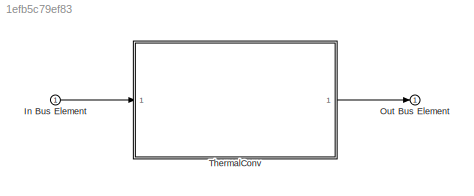
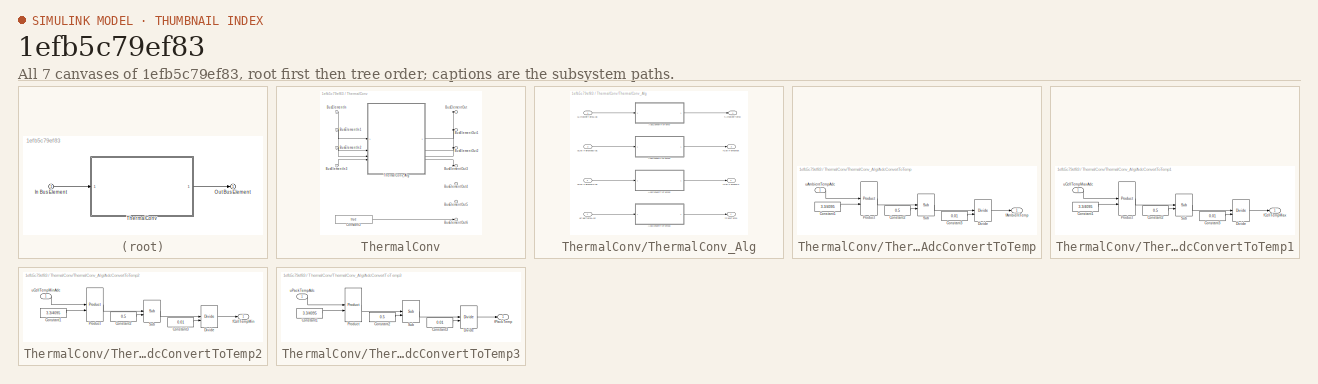
[diagram: thumbnail index - all 7 canvases of the model, root first then tree order]
MODEL slx_1efb5c79ef83
KIND model
CONFIG AbsTol = auto
CONFIG EnableMultiTasking = off
CONFIG FixedStep = 10e-3
CONFIG MaxStep = auto
CONFIG MinStep = auto
CONFIG RelTol = 1e-3
CONFIG SampleTimeConstraint = Unconstrained
CONFIG SolverName = FixedStepDiscrete
CONFIG StartTime = 0.0
CONFIG StopTime = 10.0
BLOCK [Inport] In Bus Element
BLOCK [Outport] Out Bus Element
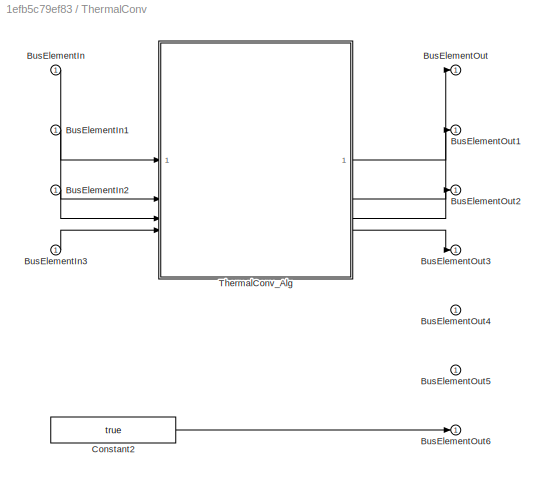
BLOCK [SubSystem] ThermalConv
BLOCK [Inport] ThermalConv/BusElementIn
BLOCK [Inport] ThermalConv/BusElementIn1
BLOCK [Inport] ThermalConv/BusElementIn2
BLOCK [Inport] ThermalConv/BusElementIn3
BLOCK [Outport] ThermalConv/BusElementOut
BLOCK [Outport] ThermalConv/BusElementOut1
BLOCK [Outport] ThermalConv/BusElementOut2
BLOCK [Outport] ThermalConv/BusElementOut3
BLOCK [Outport] ThermalConv/BusElementOut4
BLOCK [Outport] ThermalConv/BusElementOut5
BLOCK [Outport] ThermalConv/BusElementOut6
BLOCK [Constant] ThermalConv/Constant2
  OutDataTypeStr = boolean
  Value = true
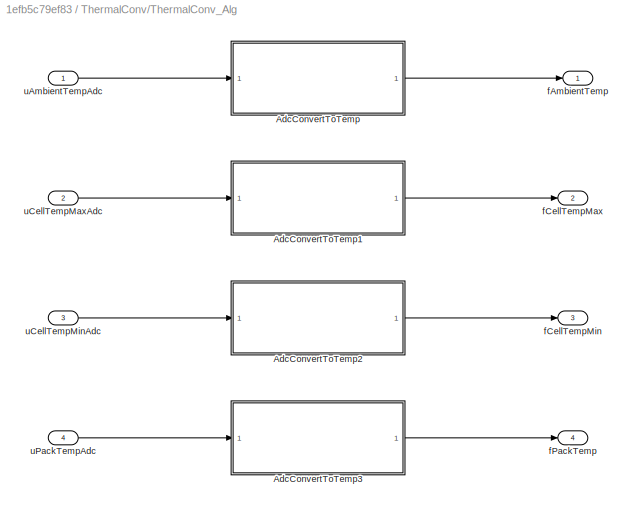
BLOCK [SubSystem] ThermalConv/ThermalConv_Alg
BLOCK [SubSystem] ThermalConv/ThermalConv_Alg/AdcConvertToTemp
  RTWFcnNameOpts = Use subsystem name
  TreatAsAtomicUnit = on
BLOCK [Constant] ThermalConv/ThermalConv_Alg/AdcConvertToTemp/Constant1
  OutDataTypeStr = single
  Value = 3.3/4095
BLOCK [Constant] ThermalConv/ThermalConv_Alg/AdcConvertToTemp/Constant2
  OutDataTypeStr = single
  Value = 0.5
BLOCK [Constant] ThermalConv/ThermalConv_Alg/AdcConvertToTemp/Constant3
  OutDataTypeStr = single
  Value = 0.01
BLOCK [Reference] ThermalConv/ThermalConv_Alg/AdcConvertToTemp/Divide  REF=AswLib/Divide
  SourceBlock = AswLib/Divide
BLOCK [Reference] ThermalConv/ThermalConv_Alg/AdcConvertToTemp/Product  REF=AswLib/Product
  SourceBlock = AswLib/Product
BLOCK [Reference] ThermalConv/ThermalConv_Alg/AdcConvertToTemp/Sub  REF=AswLib/Sub
  SourceBlock = AswLib/Sub
BLOCK [Outport] ThermalConv/ThermalConv_Alg/AdcConvertToTemp/fAmbientTemp
BLOCK [Inport] ThermalConv/ThermalConv_Alg/AdcConvertToTemp/uAmbientTempAdc
BLOCK [SubSystem] ThermalConv/ThermalConv_Alg/AdcConvertToTemp1
  RTWFcnNameOpts = Use subsystem name
  TreatAsAtomicUnit = on
BLOCK [Constant] ThermalConv/ThermalConv_Alg/AdcConvertToTemp1/Constant1
  OutDataTypeStr = single
  Value = 3.3/4095
BLOCK [Constant] ThermalConv/ThermalConv_Alg/AdcConvertToTemp1/Constant2
  OutDataTypeStr = single
  Value = 0.5
BLOCK [Constant] ThermalConv/ThermalConv_Alg/AdcConvertToTemp1/Constant3
  OutDataTypeStr = single
  Value = 0.01
BLOCK [Reference] ThermalConv/ThermalConv_Alg/AdcConvertToTemp1/Divide  REF=AswLib/Divide
  SourceBlock = AswLib/Divide
BLOCK [Reference] ThermalConv/ThermalConv_Alg/AdcConvertToTemp1/Product  REF=AswLib/Product
  SourceBlock = AswLib/Product
BLOCK [Reference] ThermalConv/ThermalConv_Alg/AdcConvertToTemp1/Sub  REF=AswLib/Sub
  SourceBlock = AswLib/Sub
BLOCK [Outport] ThermalConv/ThermalConv_Alg/AdcConvertToTemp1/fCellTempMax
BLOCK [Inport] ThermalConv/ThermalConv_Alg/AdcConvertToTemp1/uCellTempMaxAdc
BLOCK [SubSystem] ThermalConv/ThermalConv_Alg/AdcConvertToTemp2
  RTWFcnNameOpts = Use subsystem name
  TreatAsAtomicUnit = on
BLOCK [Constant] ThermalConv/ThermalConv_Alg/AdcConvertToTemp2/Constant1
  OutDataTypeStr = single
  Value = 3.3/4095
BLOCK [Constant] ThermalConv/ThermalConv_Alg/AdcConvertToTemp2/Constant2
  OutDataTypeStr = single
  Value = 0.5
BLOCK [Constant] ThermalConv/ThermalConv_Alg/AdcConvertToTemp2/Constant3
  OutDataTypeStr = single
  Value = 0.01
BLOCK [Reference] ThermalConv/ThermalConv_Alg/AdcConvertToTemp2/Divide  REF=AswLib/Divide
  SourceBlock = AswLib/Divide
BLOCK [Reference] ThermalConv/ThermalConv_Alg/AdcConvertToTemp2/Product  REF=AswLib/Product
  SourceBlock = AswLib/Product
BLOCK [Reference] ThermalConv/ThermalConv_Alg/AdcConvertToTemp2/Sub  REF=AswLib/Sub
  SourceBlock = AswLib/Sub
BLOCK [Outport] ThermalConv/ThermalConv_Alg/AdcConvertToTemp2/fCellTempMin
BLOCK [Inport] ThermalConv/ThermalConv_Alg/AdcConvertToTemp2/uCellTempMinAdc
BLOCK [SubSystem] ThermalConv/ThermalConv_Alg/AdcConvertToTemp3
  RTWFcnNameOpts = Use subsystem name
  TreatAsAtomicUnit = on
BLOCK [Constant] ThermalConv/ThermalConv_Alg/AdcConvertToTemp3/Constant1
  OutDataTypeStr = single
  Value = 3.3/4095
BLOCK [Constant] ThermalConv/ThermalConv_Alg/AdcConvertToTemp3/Constant2
  OutDataTypeStr = single
  Value = 0.5
BLOCK [Constant] ThermalConv/ThermalConv_Alg/AdcConvertToTemp3/Constant3
  OutDataTypeStr = single
  Value = 0.01
BLOCK [Reference] ThermalConv/ThermalConv_Alg/AdcConvertToTemp3/Divide  REF=AswLib/Divide
  SourceBlock = AswLib/Divide
BLOCK [Reference] ThermalConv/ThermalConv_Alg/AdcConvertToTemp3/Product  REF=AswLib/Product
  SourceBlock = AswLib/Product
BLOCK [Reference] ThermalConv/ThermalConv_Alg/AdcConvertToTemp3/Sub  REF=AswLib/Sub
  SourceBlock = AswLib/Sub
BLOCK [Outport] ThermalConv/ThermalConv_Alg/AdcConvertToTemp3/fPackTemp
BLOCK [Inport] ThermalConv/ThermalConv_Alg/AdcConvertToTemp3/uPackTempAdc
BLOCK [Outport] ThermalConv/ThermalConv_Alg/fAmbientTemp
BLOCK [Outport] ThermalConv/ThermalConv_Alg/fCellTempMax
  Port = 2
BLOCK [Outport] ThermalConv/ThermalConv_Alg/fCellTempMin
  Port = 3
BLOCK [Outport] ThermalConv/ThermalConv_Alg/fPackTemp
  Port = 4
BLOCK [Inport] ThermalConv/ThermalConv_Alg/uAmbientTempAdc
BLOCK [Inport] ThermalConv/ThermalConv_Alg/uCellTempMaxAdc
  Port = 2
BLOCK [Inport] ThermalConv/ThermalConv_Alg/uCellTempMinAdc
  Port = 3
BLOCK [Inport] ThermalConv/ThermalConv_Alg/uPackTempAdc
  Port = 4
LINE In Bus Element:1 -> ThermalConv:1
LINE ThermalConv/BusElementIn1:1 -> ThermalConv/ThermalConv_Alg:2
LINE ThermalConv/BusElementIn2:1 -> ThermalConv/ThermalConv_Alg:3
LINE ThermalConv/BusElementIn3:1 -> ThermalConv/ThermalConv_Alg:4
LINE ThermalConv/BusElementIn:1 -> ThermalConv/ThermalConv_Alg:1
LINE ThermalConv/Constant2:1 -> ThermalConv/BusElementOut6:1
LINE ThermalConv/ThermalConv_Alg/AdcConvertToTemp/Constant1:1 -> ThermalConv/ThermalConv_Alg/AdcConvertToTemp/Product:2
LINE ThermalConv/ThermalConv_Alg/AdcConvertToTemp/Constant2:1 -> ThermalConv/ThermalConv_Alg/AdcConvertToTemp/Sub:2
LINE ThermalConv/ThermalConv_Alg/AdcConvertToTemp/Constant3:1 -> ThermalConv/ThermalConv_Alg/AdcConvertToTemp/Divide:2
LINE ThermalConv/ThermalConv_Alg/AdcConvertToTemp/Divide:1 -> ThermalConv/ThermalConv_Alg/AdcConvertToTemp/fAmbientTemp:1
LINE ThermalConv/ThermalConv_Alg/AdcConvertToTemp/Product:1 -> ThermalConv/ThermalConv_Alg/AdcConvertToTemp/Sub:1
LINE ThermalConv/ThermalConv_Alg/AdcConvertToTemp/Sub:1 -> ThermalConv/ThermalConv_Alg/AdcConvertToTemp/Divide:1
LINE ThermalConv/ThermalConv_Alg/AdcConvertToTemp/uAmbientTempAdc:1 -> ThermalConv/ThermalConv_Alg/AdcConvertToTemp/Product:1
LINE ThermalConv/ThermalConv_Alg/AdcConvertToTemp1/Constant1:1 -> ThermalConv/ThermalConv_Alg/AdcConvertToTemp1/Product:2
LINE ThermalConv/ThermalConv_Alg/AdcConvertToTemp1/Constant2:1 -> ThermalConv/ThermalConv_Alg/AdcConvertToTemp1/Sub:2
LINE ThermalConv/ThermalConv_Alg/AdcConvertToTemp1/Constant3:1 -> ThermalConv/ThermalConv_Alg/AdcConvertToTemp1/Divide:2
LINE ThermalConv/ThermalConv_Alg/AdcConvertToTemp1/Divide:1 -> ThermalConv/ThermalConv_Alg/AdcConvertToTemp1/fCellTempMax:1
LINE ThermalConv/ThermalConv_Alg/AdcConvertToTemp1/Product:1 -> ThermalConv/ThermalConv_Alg/AdcConvertToTemp1/Sub:1
LINE ThermalConv/ThermalConv_Alg/AdcConvertToTemp1/Sub:1 -> ThermalConv/ThermalConv_Alg/AdcConvertToTemp1/Divide:1
LINE ThermalConv/ThermalConv_Alg/AdcConvertToTemp1/uCellTempMaxAdc:1 -> ThermalConv/ThermalConv_Alg/AdcConvertToTemp1/Product:1
LINE ThermalConv/ThermalConv_Alg/AdcConvertToTemp1:1 -> ThermalConv/ThermalConv_Alg/fCellTempMax:1
LINE ThermalConv/ThermalConv_Alg/AdcConvertToTemp2/Constant1:1 -> ThermalConv/ThermalConv_Alg/AdcConvertToTemp2/Product:2
LINE ThermalConv/ThermalConv_Alg/AdcConvertToTemp2/Constant2:1 -> ThermalConv/ThermalConv_Alg/AdcConvertToTemp2/Sub:2
LINE ThermalConv/ThermalConv_Alg/AdcConvertToTemp2/Constant3:1 -> ThermalConv/ThermalConv_Alg/AdcConvertToTemp2/Divide:2
LINE ThermalConv/ThermalConv_Alg/AdcConvertToTemp2/Divide:1 -> ThermalConv/ThermalConv_Alg/AdcConvertToTemp2/fCellTempMin:1
LINE ThermalConv/ThermalConv_Alg/AdcConvertToTemp2/Product:1 -> ThermalConv/ThermalConv_Alg/AdcConvertToTemp2/Sub:1
LINE ThermalConv/ThermalConv_Alg/AdcConvertToTemp2/Sub:1 -> ThermalConv/ThermalConv_Alg/AdcConvertToTemp2/Divide:1
LINE ThermalConv/ThermalConv_Alg/AdcConvertToTemp2/uCellTempMinAdc:1 -> ThermalConv/ThermalConv_Alg/AdcConvertToTemp2/Product:1
LINE ThermalConv/ThermalConv_Alg/AdcConvertToTemp2:1 -> ThermalConv/ThermalConv_Alg/fCellTempMin:1
LINE ThermalConv/ThermalConv_Alg/AdcConvertToTemp3/Constant1:1 -> ThermalConv/ThermalConv_Alg/AdcConvertToTemp3/Product:2
LINE ThermalConv/ThermalConv_Alg/AdcConvertToTemp3/Constant2:1 -> ThermalConv/ThermalConv_Alg/AdcConvertToTemp3/Sub:2
LINE ThermalConv/ThermalConv_Alg/AdcConvertToTemp3/Constant3:1 -> ThermalConv/ThermalConv_Alg/AdcConvertToTemp3/Divide:2
LINE ThermalConv/ThermalConv_Alg/AdcConvertToTemp3/Divide:1 -> ThermalConv/ThermalConv_Alg/AdcConvertToTemp3/fPackTemp:1
LINE ThermalConv/ThermalConv_Alg/AdcConvertToTemp3/Product:1 -> ThermalConv/ThermalConv_Alg/AdcConvertToTemp3/Sub:1
LINE ThermalConv/ThermalConv_Alg/AdcConvertToTemp3/Sub:1 -> ThermalConv/ThermalConv_Alg/AdcConvertToTemp3/Divide:1
LINE ThermalConv/ThermalConv_Alg/AdcConvertToTemp3/uPackTempAdc:1 -> ThermalConv/ThermalConv_Alg/AdcConvertToTemp3/Product:1
LINE ThermalConv/ThermalConv_Alg/AdcConvertToTemp3:1 -> ThermalConv/ThermalConv_Alg/fPackTemp:1
LINE ThermalConv/ThermalConv_Alg/AdcConvertToTemp:1 -> ThermalConv/ThermalConv_Alg/fAmbientTemp:1
LINE ThermalConv/ThermalConv_Alg/uAmbientTempAdc:1 -> ThermalConv/ThermalConv_Alg/AdcConvertToTemp:1
LINE ThermalConv/ThermalConv_Alg/uCellTempMaxAdc:1 -> ThermalConv/ThermalConv_Alg/AdcConvertToTemp1:1
LINE ThermalConv/ThermalConv_Alg/uCellTempMinAdc:1 -> ThermalConv/ThermalConv_Alg/AdcConvertToTemp2:1
LINE ThermalConv/ThermalConv_Alg/uPackTempAdc:1 -> ThermalConv/ThermalConv_Alg/AdcConvertToTemp3:1
LINE ThermalConv/ThermalConv_Alg:1 -> ThermalConv/BusElementOut:1
LINE ThermalConv/ThermalConv_Alg:2 -> ThermalConv/BusElementOut1:1
LINE ThermalConv/ThermalConv_Alg:3 -> ThermalConv/BusElementOut2:1
LINE ThermalConv/ThermalConv_Alg:4 -> ThermalConv/BusElementOut3:1
LINE ThermalConv:1 -> Out Bus Element:1
